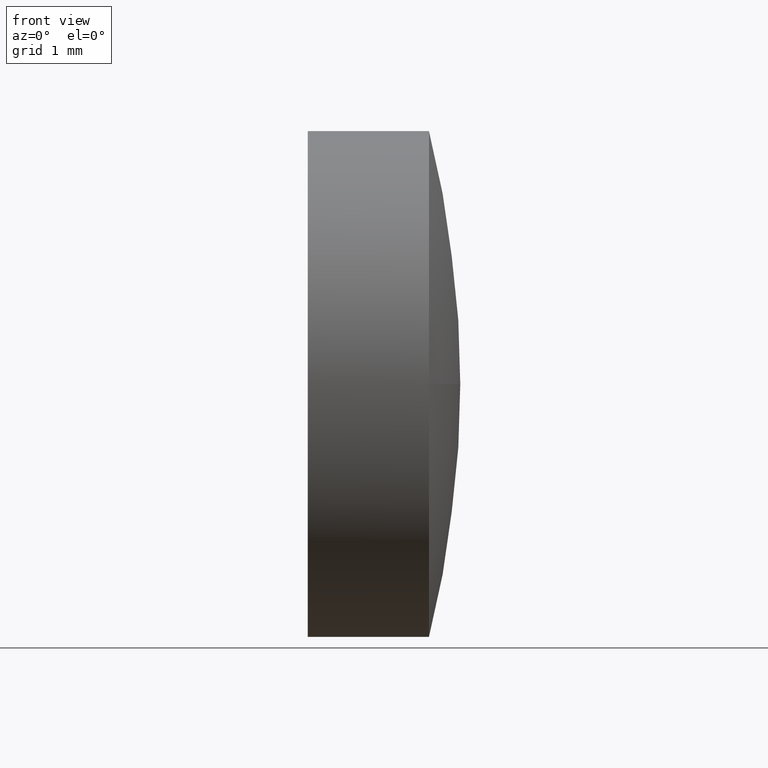
[diagram: clean part render]
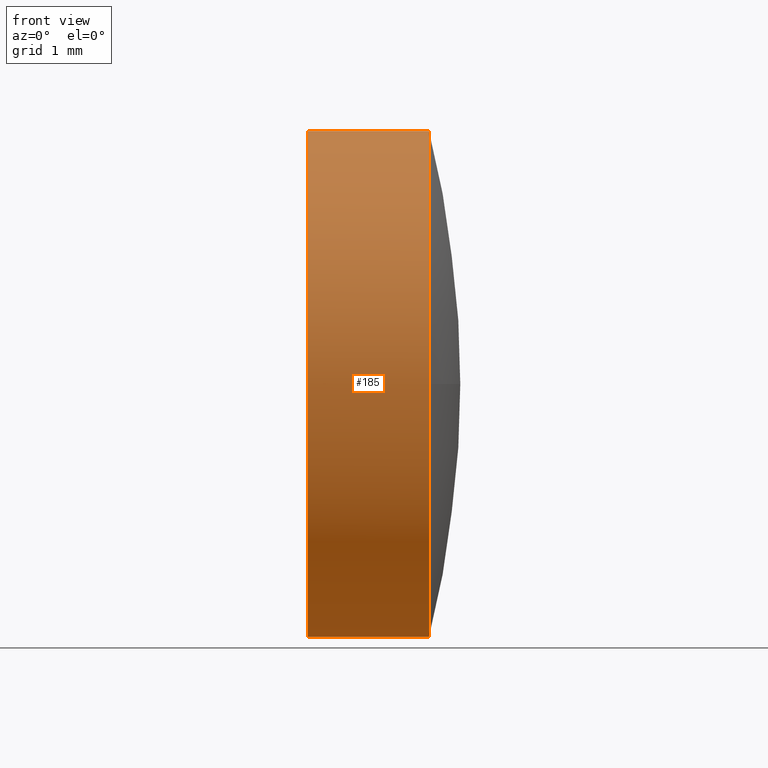
[diagram: same view with one face highlighted and labeled with its STEP entity id]
A machine part, front view. The second image highlights one B-rep face of the part: STEP entity #185.
In plain terms, the highlighted cylindrical surface (partial cylindrical patch) has radius 3.15 mm, axis along (-1, -0, -0).
Its self-contained STEP definition (entity closure, byte-faithful):
#10 = CIRCLE ( 'NONE', #183, 3.149999999999986100 ) ;
#16 = DIRECTION ( 'NONE',  ( 0.0000000000000000000, 0.0000000000000000000, 1.000000000000000000 ) ) ;
#18 = DIRECTION ( 'NONE',  ( -1.000000000000000000, -0.0000000000000000000, -0.0000000000000000000 ) ) ;
#20 = CARTESIAN_POINT ( 'NONE',  ( 635.1070500243175700, 229.1405012617116200, 0.0000000000000000000 ) ) ;
#24 = LINE ( 'NONE', #41, #126 ) ;
#38 = CARTESIAN_POINT ( 'NONE',  ( 635.1070500243175700, 229.1405012617116200, -3.149999999999986100 ) ) ;
#40 = EDGE_CURVE ( 'NONE', #104, #64, #92, .T. ) ;
#41 = CARTESIAN_POINT ( 'NONE',  ( 611.6004701883784900, 229.1405012617116200, 3.149999999999986100 ) ) ;
#43 = DIRECTION ( 'NONE',  ( 0.0000000000000000000, 0.0000000000000000000, 1.000000000000000000 ) ) ;
#46 = VERTEX_POINT ( 'NONE', #174 ) ;
#51 = CARTESIAN_POINT ( 'NONE',  ( 635.1070500243175700, 229.1405012617116200, 3.149999999999986100 ) ) ;
#56 = CYLINDRICAL_SURFACE ( 'NONE', #134, 3.149999999999986100 ) ;
#59 = ORIENTED_EDGE ( 'NONE', *, *, #130, .F. ) ;
#63 = EDGE_CURVE ( 'NONE', #146, #182, #24, .T. ) ;
#64 = VERTEX_POINT ( 'NONE', #155 ) ;
#66 = ORIENTED_EDGE ( 'NONE', *, *, #81, .T. ) ;
#71 = DIRECTION ( 'NONE',  ( -1.000000000000000000, -0.0000000000000000000, -0.0000000000000000000 ) ) ;
#79 = FACE_OUTER_BOUND ( 'NONE', #115, .T. ) ;
#81 = EDGE_CURVE ( 'NONE', #46, #146, #111, .T. ) ;
#82 = ORIENTED_EDGE ( 'NONE', *, *, #162, .T. ) ;
#84 = AXIS2_PLACEMENT_3D ( 'NONE', #20, #108, #123 ) ;
#86 = CARTESIAN_POINT ( 'NONE',  ( 611.6004701883784900, 229.1405012617116200, -3.149999999999986100 ) ) ;
#92 = LINE ( 'NONE', #86, #177 ) ;
#103 = DIRECTION ( 'NONE',  ( -1.000000000000000000, -0.0000000000000000000, -0.0000000000000000000 ) ) ;
#104 = VERTEX_POINT ( 'NONE', #38 ) ;
#108 = DIRECTION ( 'NONE',  ( -1.000000000000000000, -0.0000000000000000000, -0.0000000000000000000 ) ) ;
#111 = CIRCLE ( 'NONE', #116, 3.149999999999986100 ) ;
#115 = EDGE_LOOP ( 'NONE', ( #132, #82, #66, #153, #59 ) ) ;
#116 = AXIS2_PLACEMENT_3D ( 'NONE', #154, #18, #16 ) ;
#121 = CARTESIAN_POINT ( 'NONE',  ( 611.6004701883784900, 229.1405012617116200, 0.0000000000000000000 ) ) ;
#123 = DIRECTION ( 'NONE',  ( 0.0000000000000000000, 0.0000000000000000000, 1.000000000000000000 ) ) ;
#124 = DIRECTION ( 'NONE',  ( -1.000000000000000000, -0.0000000000000000000, -0.0000000000000000000 ) ) ;
#126 = VECTOR ( 'NONE', #133, 1000.000000000000000 ) ;
#130 = EDGE_CURVE ( 'NONE', #64, #182, #10, .T. ) ;
#132 = ORIENTED_EDGE ( 'NONE', *, *, #40, .F. ) ;
#133 = DIRECTION ( 'NONE',  ( -1.000000000000000000, -0.0000000000000000000, -0.0000000000000000000 ) ) ;
#134 = AXIS2_PLACEMENT_3D ( 'NONE', #121, #124, #43 ) ;
#146 = VERTEX_POINT ( 'NONE', #51 ) ;
#153 = ORIENTED_EDGE ( 'NONE', *, *, #63, .T. ) ;
#154 = CARTESIAN_POINT ( 'NONE',  ( 635.1070500243175700, 229.1405012617116200, 0.0000000000000000000 ) ) ;
#155 = CARTESIAN_POINT ( 'NONE',  ( 633.5970500243175800, 229.1405012617116200, -3.149999999999986100 ) ) ;
#162 = EDGE_CURVE ( 'NONE', #104, #46, #173, .T. ) ;
#163 = CARTESIAN_POINT ( 'NONE',  ( 633.5970500243175800, 229.1405012617116200, 3.149999999999986100 ) ) ;
#173 = CIRCLE ( 'NONE', #84, 3.149999999999986100 ) ;
#174 = CARTESIAN_POINT ( 'NONE',  ( 635.1070500243175700, 225.9905012617116700, -3.857637417314171600E-016 ) ) ;
#175 = CARTESIAN_POINT ( 'NONE',  ( 633.5970500243175800, 229.1405012617116200, 0.0000000000000000000 ) ) ;
#176 = DIRECTION ( 'NONE',  ( 0.0000000000000000000, 0.0000000000000000000, 1.000000000000000000 ) ) ;
#177 = VECTOR ( 'NONE', #103, 1000.000000000000000 ) ;
#182 = VERTEX_POINT ( 'NONE', #163 ) ;
#183 = AXIS2_PLACEMENT_3D ( 'NONE', #175, #71, #176 ) ;
#185 = ADVANCED_FACE ( 'NONE', ( #79 ), #56, .T. ) ;